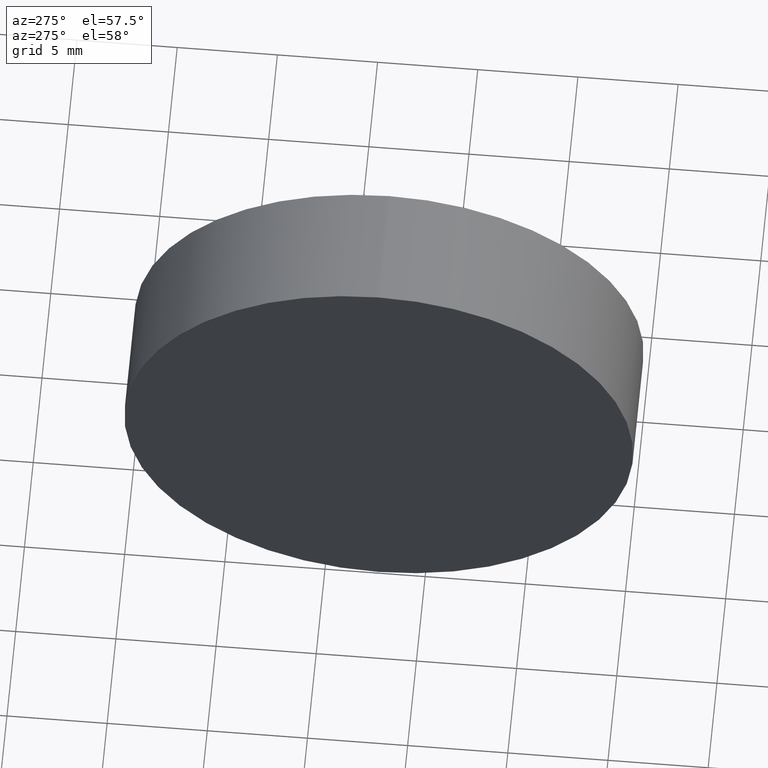
[diagram: clean part render]
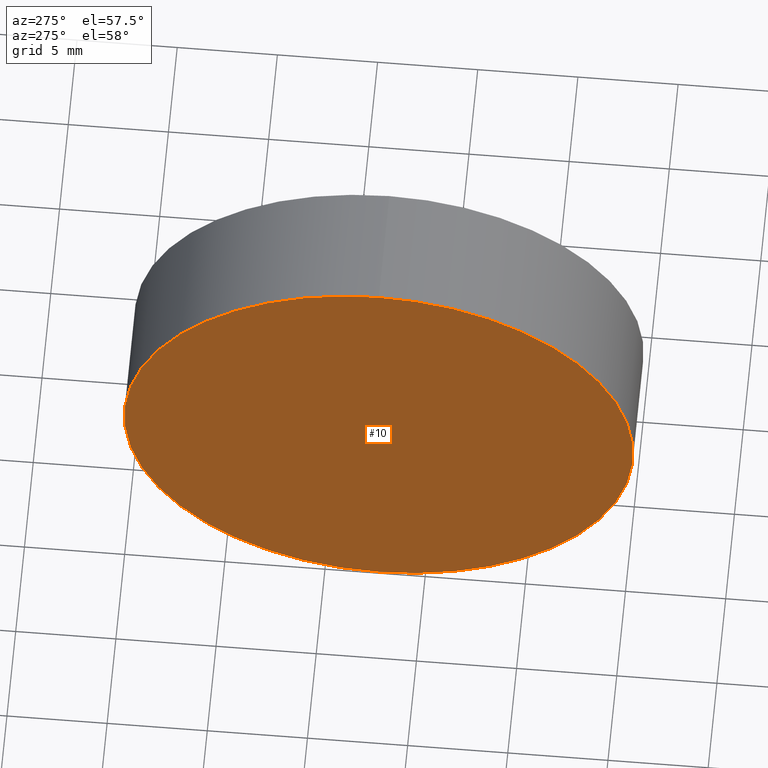
[diagram: same view with one face highlighted and labeled with its STEP entity id]
A machine part, auxiliary view. The second image highlights one B-rep face of the part: STEP entity #10.
In plain terms, the highlighted planar face has unit normal (1, 0, 0).
Its self-contained STEP definition (entity closure, byte-faithful):
#3 = AXIS2_PLACEMENT_3D ( 'NONE', #63, #123, #103 ) ;
#4 = DIRECTION ( 'NONE',  ( -1.000000000000000000, -0.0000000000000000000, -0.0000000000000000000 ) ) ;
#10 = ADVANCED_FACE ( 'NONE', ( #129 ), #93, .F. ) ;
#17 = CARTESIAN_POINT ( 'NONE',  ( 259.7243528930642900, 77.29317934901541800, 0.0000000000000000000 ) ) ;
#23 = EDGE_LOOP ( 'NONE', ( #87, #79 ) ) ;
#40 = CIRCLE ( 'NONE', #131, 12.70000000000000300 ) ;
#43 = EDGE_CURVE ( 'NONE', #50, #45, #126, .T. ) ;
#45 = VERTEX_POINT ( 'NONE', #71 ) ;
#50 = VERTEX_POINT ( 'NONE', #92 ) ;
#51 = AXIS2_PLACEMENT_3D ( 'NONE', #84, #4, #106 ) ;
#59 = EDGE_CURVE ( 'NONE', #45, #50, #40, .T. ) ;
#63 = CARTESIAN_POINT ( 'NONE',  ( 259.7243528930642900, 77.29317934901541800, 0.0000000000000000000 ) ) ;
#71 = CARTESIAN_POINT ( 'NONE',  ( 259.7243528930642900, 77.29317934901541800, 12.70000000000000300 ) ) ;
#72 = DIRECTION ( 'NONE',  ( -1.000000000000000000, -0.0000000000000000000, -0.0000000000000000000 ) ) ;
#79 = ORIENTED_EDGE ( 'NONE', *, *, #43, .T. ) ;
#84 = CARTESIAN_POINT ( 'NONE',  ( 259.7243528930642900, 77.29317934901541800, 0.0000000000000000000 ) ) ;
#87 = ORIENTED_EDGE ( 'NONE', *, *, #59, .T. ) ;
#92 = CARTESIAN_POINT ( 'NONE',  ( 259.7243528930642900, 77.29317934901541800, -12.70000000000000300 ) ) ;
#93 = PLANE ( 'NONE',  #3 ) ;
#103 = DIRECTION ( 'NONE',  ( 0.0000000000000000000, 0.0000000000000000000, -1.000000000000000000 ) ) ;
#106 = DIRECTION ( 'NONE',  ( 0.0000000000000000000, 0.0000000000000000000, 1.000000000000000000 ) ) ;
#115 = DIRECTION ( 'NONE',  ( 0.0000000000000000000, 0.0000000000000000000, 1.000000000000000000 ) ) ;
#123 = DIRECTION ( 'NONE',  ( 1.000000000000000000, 0.0000000000000000000, 0.0000000000000000000 ) ) ;
#126 = CIRCLE ( 'NONE', #51, 12.70000000000000300 ) ;
#129 = FACE_OUTER_BOUND ( 'NONE', #23, .T. ) ;
#131 = AXIS2_PLACEMENT_3D ( 'NONE', #17, #72, #115 ) ;